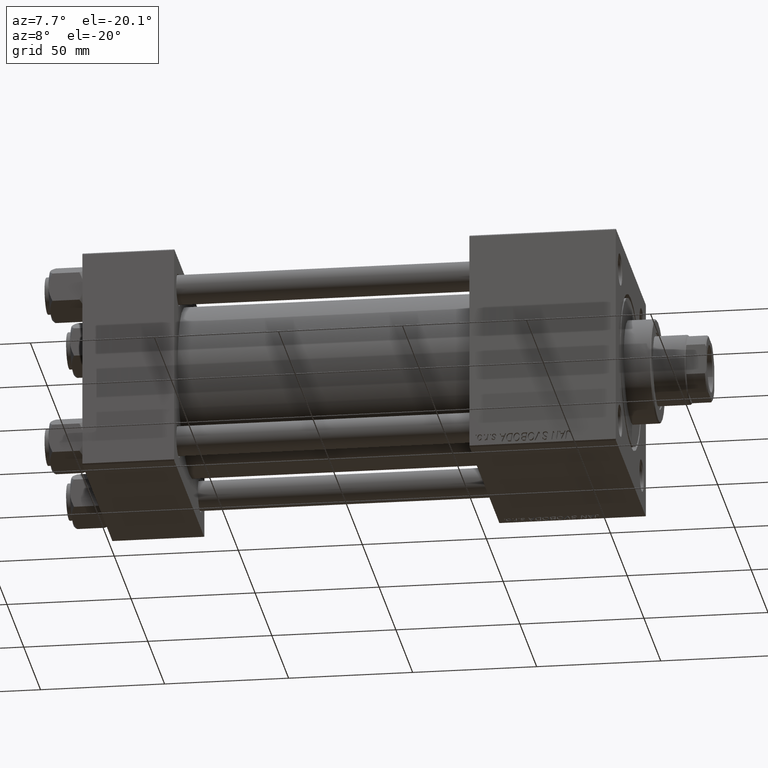
[diagram: clean part render]
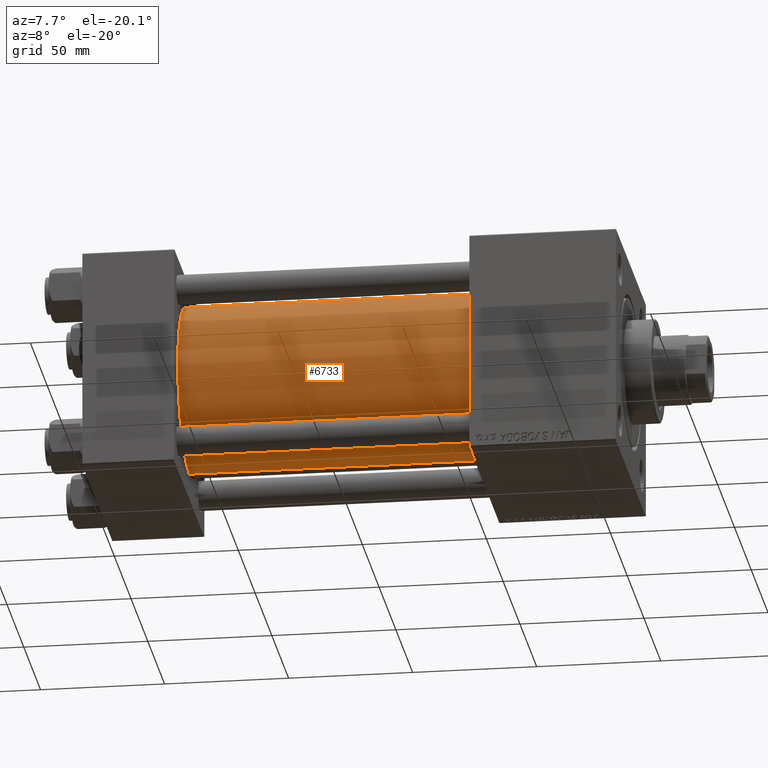
[diagram: same view with one face highlighted and labeled with its STEP entity id]
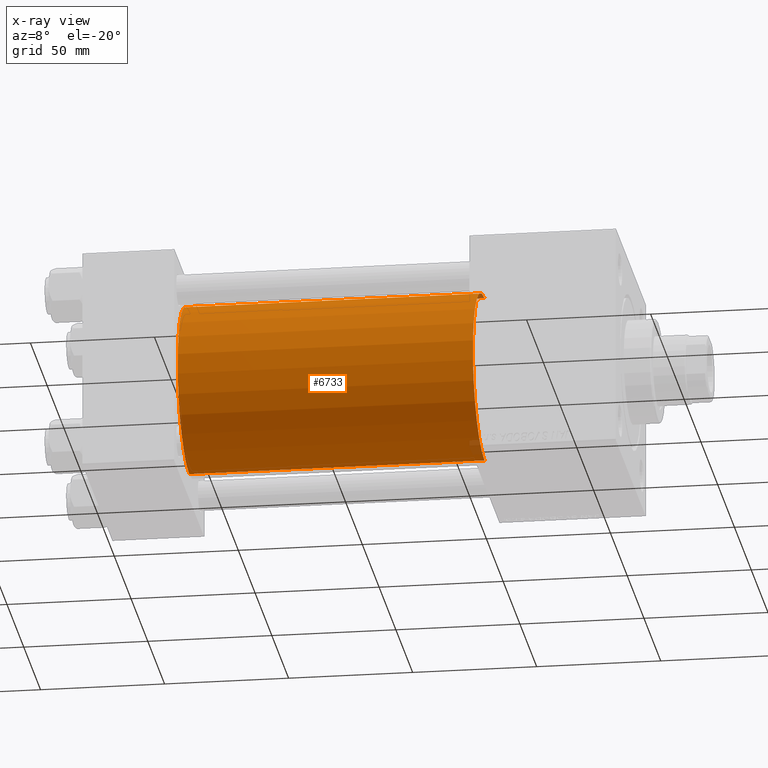
[diagram: x-ray of the same camera — body ghosted, the highlighted face saturated]
A machine part, auxiliary view. The second image highlights one B-rep face of the part: STEP entity #6733.
The next image is the same camera in x-ray: the body ghosted, the highlighted face saturated — about 0% of this face is hidden behind the body in this view.
In plain terms, the highlighted cylindrical surface (partial cylindrical patch) has radius 34.5 mm, axis along (-1, -0, -0).
Its self-contained STEP definition (entity closure, byte-faithful):
#177 = DIRECTION ( 'NONE',  ( -1.000000000000000000, -0.000000000000000000, -0.000000000000000000 ) ) ;
#392 = VERTEX_POINT ( 'NONE', #37438 ) ;
#3258 = DIRECTION ( 'NONE',  ( 1.000000000000000000, -0.000000000000000000, 0.000000000000000000 ) ) ;
#5759 = DIRECTION ( 'NONE',  ( 1.000000000000000000, 0.000000000000000000, 0.000000000000000000 ) ) ;
#6522 = EDGE_LOOP ( 'NONE', ( #11327, #35944, #23240, #34388 ) ) ;
#6733 = ADVANCED_FACE ( 'NONE', ( #38009 ), #15153, .T. ) ;
#7789 = DIRECTION ( 'NONE',  ( 0.000000000000000000, 0.000000000000000000, 1.000000000000000000 ) ) ;
#9558 = CARTESIAN_POINT ( 'NONE',  ( 156.0000000000000000, -2.602085213965210642E-15, 0.000000000000000000 ) ) ;
#11327 = ORIENTED_EDGE ( 'NONE', *, *, #16741, .F. ) ;
#12359 = LINE ( 'NONE', #23277, #47146 ) ;
#15153 = CYLINDRICAL_SURFACE ( 'NONE', #45169, 34.50000000000000000 ) ;
#16741 = EDGE_CURVE ( 'NONE', #20818, #23749, #12359, .T. ) ;
#18456 = DIRECTION ( 'NONE',  ( -1.000000000000000000, -0.000000000000000000, -0.000000000000000000 ) ) ;
#20243 = EDGE_CURVE ( 'NONE', #392, #23749, #37367, .T. ) ;
#20818 = VERTEX_POINT ( 'NONE', #49305 ) ;
#22818 = VECTOR ( 'NONE', #34812, 1000.000000000000000 ) ;
#23240 = ORIENTED_EDGE ( 'NONE', *, *, #39000, .T. ) ;
#23277 = CARTESIAN_POINT ( 'NONE',  ( 156.0000000000000000, 1.622946243093158675E-15, -34.50000000000000000 ) ) ;
#23749 = VERTEX_POINT ( 'NONE', #25727 ) ;
#25727 = CARTESIAN_POINT ( 'NONE',  ( 37.00000000000000711, 1.622946243093158675E-15, -34.50000000000000000 ) ) ;
#27116 = EDGE_CURVE ( 'NONE', #43924, #20818, #45240, .T. ) ;
#30437 = CARTESIAN_POINT ( 'NONE',  ( 37.00000000000000711, -2.602085213965210642E-15, 0.000000000000000000 ) ) ;
#31605 = CARTESIAN_POINT ( 'NONE',  ( 156.0000000000000000, -2.602085213965210642E-15, 34.50000000000000000 ) ) ;
#34388 = ORIENTED_EDGE ( 'NONE', *, *, #20243, .T. ) ;
#34812 = DIRECTION ( 'NONE',  ( -1.000000000000000000, -0.000000000000000000, -0.000000000000000000 ) ) ;
#35944 = ORIENTED_EDGE ( 'NONE', *, *, #27116, .F. ) ;
#37367 = CIRCLE ( 'NONE', #42261, 34.50000000000000000 ) ;
#37438 = CARTESIAN_POINT ( 'NONE',  ( 37.00000000000000711, -2.602085213965210642E-15, 34.50000000000000000 ) ) ;
#38009 = FACE_OUTER_BOUND ( 'NONE', #6522, .T. ) ;
#38042 = DIRECTION ( 'NONE',  ( 0.000000000000000000, 0.000000000000000000, 1.000000000000000000 ) ) ;
#39000 = EDGE_CURVE ( 'NONE', #43924, #392, #46757, .T. ) ;
#42068 = CARTESIAN_POINT ( 'NONE',  ( 156.0000000000000000, -2.602085213965210642E-15, 0.000000000000000000 ) ) ;
#42261 = AXIS2_PLACEMENT_3D ( 'NONE', #30437, #3258, #38042 ) ;
#42930 = CARTESIAN_POINT ( 'NONE',  ( 156.0000000000000000, -2.602085213965210642E-15, 34.50000000000000000 ) ) ;
#43924 = VERTEX_POINT ( 'NONE', #31605 ) ;
#45091 = DIRECTION ( 'NONE',  ( 0.000000000000000000, 0.000000000000000000, -1.000000000000000000 ) ) ;
#45169 = AXIS2_PLACEMENT_3D ( 'NONE', #42068, #18456, #7789 ) ;
#45240 = CIRCLE ( 'NONE', #49302, 34.50000000000000000 ) ;
#46757 = LINE ( 'NONE', #42930, #22818 ) ;
#47146 = VECTOR ( 'NONE', #177, 1000.000000000000000 ) ;
#49302 = AXIS2_PLACEMENT_3D ( 'NONE', #9558, #5759, #45091 ) ;
#49305 = CARTESIAN_POINT ( 'NONE',  ( 156.0000000000000000, 1.622946243093158675E-15, -34.50000000000000000 ) ) ;